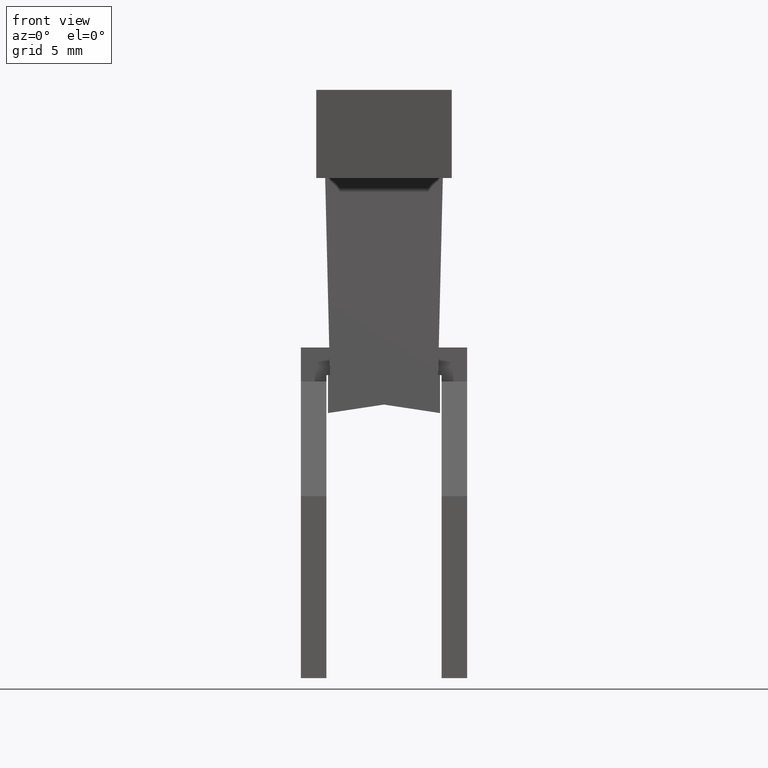
[diagram: clean part render]
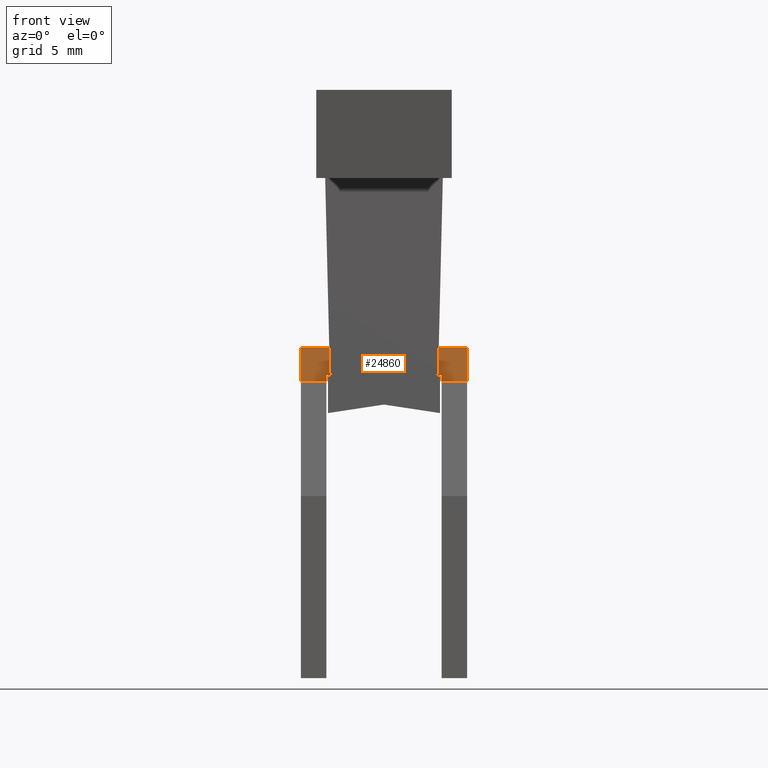
[diagram: same view with one face highlighted and labeled with its STEP entity id]
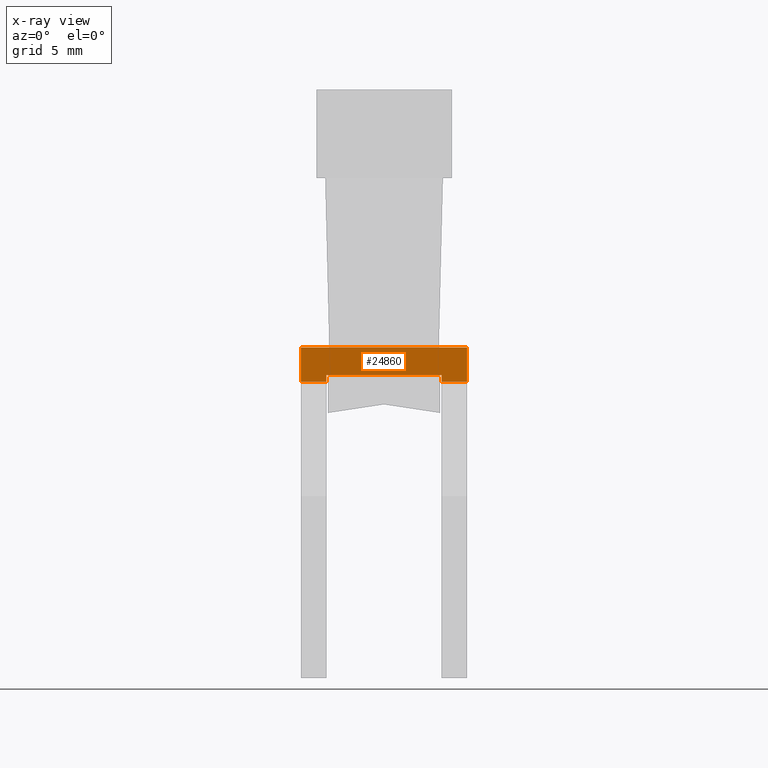
[diagram: x-ray of the same camera — body ghosted, the highlighted face saturated]
A machine part, front view. The second image highlights one B-rep face of the part: STEP entity #24860.
The next image is the same camera in x-ray: the body ghosted, the highlighted face saturated — about 0% of this face is hidden behind the body in this view.
In plain terms, the highlighted planar face has unit normal (-0, 1, 0).
Its self-contained STEP definition (entity closure, byte-faithful):
#11880=CARTESIAN_POINT('',(0.,19.5,12.5));
#11890=VERTEX_POINT('',#11880);
#11940=CARTESIAN_POINT('',(0.,19.5,12.5));
#11950=DIRECTION('',(-1.,0.,0.));
#11960=VECTOR('',#11950,1.);
#11970=LINE('',#11940,#11960);
#11980=CARTESIAN_POINT('',(-9.8,19.5,12.5));
#11990=VERTEX_POINT('',#11980);
#12000=EDGE_CURVE('',#11890,#11990,#11970,.T.);
#13710=CARTESIAN_POINT('',(-8.2,17.8718018669666,12.5));
#13720=VERTEX_POINT('',#13710);
#14220=CARTESIAN_POINT('',(-1.60000000000002,17.8718018669666,12.5));
#14230=VERTEX_POINT('',#14220);
#15010=CARTESIAN_POINT('',(0.,17.8718018669666,12.5));
#15020=DIRECTION('',(-1.,-8.26504207797046E-48,-6.07716335728627E-64));
#15030=VECTOR('',#15020,1.);
#15040=LINE('',#15010,#15030);
#15050=EDGE_CURVE('',#14230,#13720,#15040,.T.);
#18330=CARTESIAN_POINT('',(-8.3,17.8718018669666,12.5));
#18340=VERTEX_POINT('',#18330);
#18370=CARTESIAN_POINT('',(0.,17.8718018669666,12.5));
#18380=DIRECTION('',(-1.,3.20866534055566E-15,1.97215226305253E-31));
#18390=VECTOR('',#18380,1.);
#18400=LINE('',#18370,#18390);
#18410=EDGE_CURVE('',#13720,#18340,#18400,.T.);
#19970=CARTESIAN_POINT('',(-9.8,0.,12.5));
#19980=DIRECTION('',(0.,-1.,-6.12323399573677E-17));
#19990=VECTOR('',#19980,1.);
#20000=LINE('',#19970,#19990);
#20010=CARTESIAN_POINT('',(-9.8,17.5,12.5));
#20020=VERTEX_POINT('',#20010);
#20030=EDGE_CURVE('',#11990,#20020,#20000,.T.);
#21910=CARTESIAN_POINT('',(-8.3,17.5,12.5));
#21920=VERTEX_POINT('',#21910);
#21950=CARTESIAN_POINT('',(-8.3,0.,12.5));
#21960=DIRECTION('',(0.,1.,6.12323399573677E-17));
#21970=VECTOR('',#21960,1.);
#21980=LINE('',#21950,#21970);
#21990=EDGE_CURVE('',#21920,#18340,#21980,.T.);
#23640=CARTESIAN_POINT('',(0.,17.5,12.5));
#23650=DIRECTION('',(1.,0.,0.));
#23660=VECTOR('',#23650,1.);
#23670=LINE('',#23640,#23660);
#23680=EDGE_CURVE('',#20020,#21920,#23670,.T.);
#24470=CARTESIAN_POINT('',(-10.7800024,19.5,12.5));
#24480=DIRECTION('',(0.,6.12323399573677E-17,-1.));
#24490=DIRECTION('',(0.,-1.,-6.12323399573677E-17));
#24500=AXIS2_PLACEMENT_3D('',#24470,#24480,#24490);
#24510=PLANE('',#24500);
#24520=CARTESIAN_POINT('',(-1.5,17.8718018669666,12.5));
#24530=VERTEX_POINT('',#24520);
#24540=EDGE_CURVE('',#24530,#14230,#18400,.T.);
#24550=ORIENTED_EDGE('',*,*,#24540,.F.);
#24560=ORIENTED_EDGE('',*,*,#15050,.F.);
#24570=ORIENTED_EDGE('',*,*,#18410,.F.);
#24580=ORIENTED_EDGE('',*,*,#21990,.T.);
#24590=ORIENTED_EDGE('',*,*,#23680,.T.);
#24600=ORIENTED_EDGE('',*,*,#20030,.T.);
#24610=ORIENTED_EDGE('',*,*,#12000,.T.);
#24620=CARTESIAN_POINT('',(0.,0.,12.5));
#24630=DIRECTION('',(0.,1.,6.12323399573677E-17));
#24640=VECTOR('',#24630,1.);
#24650=LINE('',#24620,#24640);
#24660=CARTESIAN_POINT('',(0.,17.5,12.5));
#24670=VERTEX_POINT('',#24660);
#24680=EDGE_CURVE('',#24670,#11890,#24650,.T.);
#24690=ORIENTED_EDGE('',*,*,#24680,.T.);
#24700=CARTESIAN_POINT('',(0.,17.5,12.5));
#24710=DIRECTION('',(1.,0.,0.));
#24720=VECTOR('',#24710,1.);
#24730=LINE('',#24700,#24720);
#24740=CARTESIAN_POINT('',(-1.5,17.5,12.5));
#24750=VERTEX_POINT('',#24740);
#24760=EDGE_CURVE('',#24750,#24670,#24730,.T.);
#24770=ORIENTED_EDGE('',*,*,#24760,.T.);
#24780=CARTESIAN_POINT('',(-1.5,0.,12.5));
#24790=DIRECTION('',(0.,1.,6.12323399573677E-17));
#24800=VECTOR('',#24790,1.);
#24810=LINE('',#24780,#24800);
#24820=EDGE_CURVE('',#24750,#24530,#24810,.T.);
#24830=ORIENTED_EDGE('',*,*,#24820,.F.);
#24840=EDGE_LOOP('',(#24830,#24770,#24690,#24610,#24600,#24590,#24580,
#24570,#24560,#24550));
#24850=FACE_OUTER_BOUND('',#24840,.T.);
#24860=ADVANCED_FACE('',(#24850),#24510,.F.);